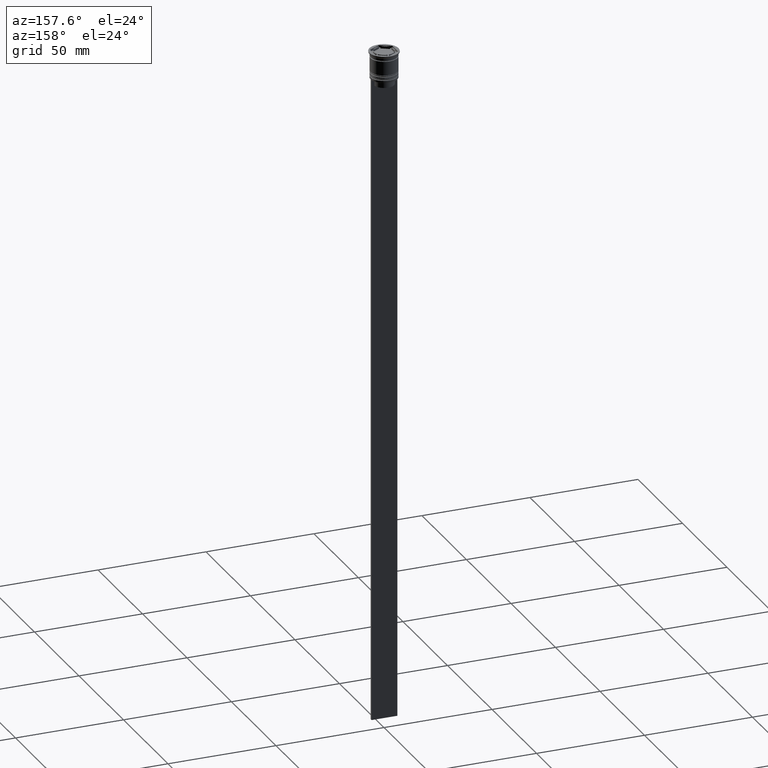
[diagram: clean part render]
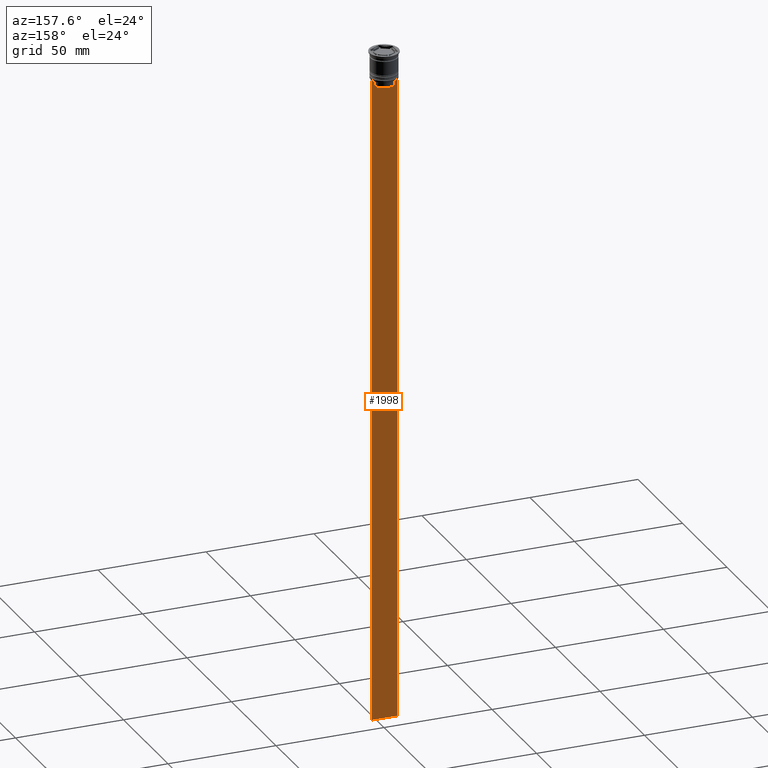
[diagram: same view with one face highlighted and labeled with its STEP entity id]
A machine part, auxiliary view. The second image highlights one B-rep face of the part: STEP entity #1998.
In plain terms, the highlighted planar face has unit normal (0, -1, -0).
Its self-contained STEP definition (entity closure, byte-faithful):
#48 = CARTESIAN_POINT ( 'NONE',  ( -4.623040125285526436, 0.4999999999999987232, -15.50000000000000000 ) ) ;
#61 = DIRECTION ( 'NONE',  ( 0.000000000000000000, 0.000000000000000000, -1.000000000000000000 ) ) ;
#92 = CARTESIAN_POINT ( 'NONE',  ( 6.000000000000016875, 0.4999999999999982792, -312.5000000000000000 ) ) ;
#96 = ORIENTED_EDGE ( 'NONE', *, *, #628, .T. ) ;
#98 = CARTESIAN_POINT ( 'NONE',  ( -5.999999999999983125, 0.4999999999999982792, -312.5000000000000000 ) ) ;
#133 = CARTESIAN_POINT ( 'NONE',  ( 6.000000000000016875, 0.4999999999999982792, -12.50000000000000000 ) ) ;
#179 = VERTEX_POINT ( 'NONE', #485 ) ;
#242 = DIRECTION ( 'NONE',  ( 0.000000000000000000, 0.000000000000000000, -1.000000000000000000 ) ) ;
#258 = DIRECTION ( 'NONE',  ( -1.000000000000000000, 0.000000000000000000, 0.000000000000000000 ) ) ;
#359 = LINE ( 'NONE', #727, #1670 ) ;
#361 = VERTEX_POINT ( 'NONE', #1869 ) ;
#368 = CARTESIAN_POINT ( 'NONE',  ( -5.125670687822231564, 0.4999999999999982792, -12.50000000000000000 ) ) ;
#386 = LINE ( 'NONE', #1611, #2234 ) ;
#400 = LINE ( 'NONE', #2237, #948 ) ;
#406 = DIRECTION ( 'NONE',  ( 0.000000000000000000, 0.000000000000000000, -1.000000000000000000 ) ) ;
#408 = EDGE_CURVE ( 'NONE', #1251, #1295, #400, .T. ) ;
#409 = DIRECTION ( 'NONE',  ( 1.000000000000000000, 0.000000000000000000, 0.000000000000000000 ) ) ;
#413 = LINE ( 'NONE', #573, #2276 ) ;
#420 = PLANE ( 'NONE',  #2279 ) ;
#435 = LINE ( 'NONE', #92, #2241 ) ;
#459 = ORIENTED_EDGE ( 'NONE', *, *, #2119, .T. ) ;
#480 = EDGE_CURVE ( 'NONE', #809, #2147, #2100, .T. ) ;
#485 = CARTESIAN_POINT ( 'NONE',  ( 6.000000000000016875, 0.4999999999999982792, -312.5000000000000000 ) ) ;
#503 = CARTESIAN_POINT ( 'NONE',  ( 6.000000000000016875, 0.4999999999999982792, -12.50000000000000000 ) ) ;
#526 = CARTESIAN_POINT ( 'NONE',  ( 4.790630799407576745, 0.4999999999999982792, -12.83338098686239093 ) ) ;
#561 = CARTESIAN_POINT ( 'NONE',  ( 5.125670687822231564, 0.4999999999999982792, -12.50000000000000000 ) ) ;
#573 = CARTESIAN_POINT ( 'NONE',  ( -4.623040125285526436, 0.4999999999999982792, 0.000000000000000000 ) ) ;
#594 = VERTEX_POINT ( 'NONE', #1218 ) ;
#615 = EDGE_LOOP ( 'NONE', ( #96, #2255, #775, #1124, #459, #1472, #617, #1274, #1117, #769 ) ) ;
#617 = ORIENTED_EDGE ( 'NONE', *, *, #480, .T. ) ;
#628 = EDGE_CURVE ( 'NONE', #361, #594, #386, .T. ) ;
#632 = DIRECTION ( 'NONE',  ( -0.000000000000000000, -0.000000000000000000, 1.000000000000000000 ) ) ;
#680 = EDGE_CURVE ( 'NONE', #2147, #179, #359, .T. ) ;
#698 = CARTESIAN_POINT ( 'NONE',  ( -4.790630915080666519, 0.4999999999999982792, -12.83338087185995313 ) ) ;
#727 = CARTESIAN_POINT ( 'NONE',  ( 6.000000000000016875, 0.4999999999999982792, -0.4584054212077061097 ) ) ;
#769 = ORIENTED_EDGE ( 'NONE', *, *, #2030, .F. ) ;
#775 = ORIENTED_EDGE ( 'NONE', *, *, #1278, .T. ) ;
#784 = DIRECTION ( 'NONE',  ( 0.000000000000000000, -1.000000000000000000, -0.000000000000000000 ) ) ;
#798 = FACE_OUTER_BOUND ( 'NONE', #615, .T. ) ;
#809 = VERTEX_POINT ( 'NONE', #979 ) ;
#872 = VECTOR ( 'NONE', #632, 1000.000000000000000 ) ;
#948 = VECTOR ( 'NONE', #409, 1000.000000000000000 ) ;
#979 = CARTESIAN_POINT ( 'NONE',  ( 5.125670687822231564, 0.4999999999999982792, -12.50000000000000000 ) ) ;
#1014 = CARTESIAN_POINT ( 'NONE',  ( 4.623040125285526436, 0.4999999999999987232, -15.50000000000000000 ) ) ;
#1015 = VERTEX_POINT ( 'NONE', #1786 ) ;
#1086 = DIRECTION ( 'NONE',  ( 0.000000000000000000, 0.000000000000000000, -1.000000000000000000 ) ) ;
#1117 = ORIENTED_EDGE ( 'NONE', *, *, #1658, .T. ) ;
#1124 = ORIENTED_EDGE ( 'NONE', *, *, #408, .T. ) ;
#1169 = LINE ( 'NONE', #1901, #872 ) ;
#1218 = CARTESIAN_POINT ( 'NONE',  ( -5.125670687822231564, 0.4999999999999982792, -12.50000000000000000 ) ) ;
#1243 = B_SPLINE_CURVE_WITH_KNOTS ( 'NONE', 3,
 ( #2004, #526, #1633, #561 ),
 .UNSPECIFIED., .F., .F.,
 ( 4, 4 ),
 ( 0.02203698174624552433, 0.02275222543365896036 ),
 .UNSPECIFIED. ) ;
#1251 = VERTEX_POINT ( 'NONE', #48 ) ;
#1273 = CARTESIAN_POINT ( 'NONE',  ( -4.623040125285526436, 0.4999999999999982792, -13.00000000000000178 ) ) ;
#1274 = ORIENTED_EDGE ( 'NONE', *, *, #680, .T. ) ;
#1278 = EDGE_CURVE ( 'NONE', #1281, #1251, #413, .T. ) ;
#1281 = VERTEX_POINT ( 'NONE', #2027 ) ;
#1295 = VERTEX_POINT ( 'NONE', #1014 ) ;
#1321 = CARTESIAN_POINT ( 'NONE',  ( 6.000000000000016875, 0.4999999999999982792, -0.4584054212077061097 ) ) ;
#1335 = CARTESIAN_POINT ( 'NONE',  ( -5.999999999999983125, 0.4999999999999982792, -0.4584054212077061097 ) ) ;
#1472 = ORIENTED_EDGE ( 'NONE', *, *, #1818, .T. ) ;
#1516 = LINE ( 'NONE', #1335, #2206 ) ;
#1611 = CARTESIAN_POINT ( 'NONE',  ( 6.000000000000016875, 0.4999999999999982792, -12.50000000000000000 ) ) ;
#1633 = CARTESIAN_POINT ( 'NONE',  ( 4.958169719475987058, 0.4999999999999982792, -12.66670967060858111 ) ) ;
#1658 = EDGE_CURVE ( 'NONE', #179, #2142, #435, .T. ) ;
#1670 = VECTOR ( 'NONE', #1086, 1000.000000000000000 ) ;
#1786 = CARTESIAN_POINT ( 'NONE',  ( 4.623040125285526436, 0.4999999999999982792, -13.00000000000000178 ) ) ;
#1787 = CARTESIAN_POINT ( 'NONE',  ( -4.958169823806762189, 0.4999999999999982792, -12.66670956677067750 ) ) ;
#1818 = EDGE_CURVE ( 'NONE', #1015, #809, #1243, .T. ) ;
#1825 = VECTOR ( 'NONE', #2285, 1000.000000000000000 ) ;
#1869 = CARTESIAN_POINT ( 'NONE',  ( -5.999999999999983125, 0.4999999999999985012, -12.50000000000000000 ) ) ;
#1901 = CARTESIAN_POINT ( 'NONE',  ( 4.623040125285526436, 0.4999999999999982792, 0.000000000000000000 ) ) ;
#1998 = ADVANCED_FACE ( 'NONE', ( #798 ), #420, .F. ) ;
#2004 = CARTESIAN_POINT ( 'NONE',  ( 4.623040125285526436, 0.4999999999999982792, -13.00000000000000178 ) ) ;
#2027 = CARTESIAN_POINT ( 'NONE',  ( -4.623040125285526436, 0.4999999999999982792, -13.00000000000000178 ) ) ;
#2030 = EDGE_CURVE ( 'NONE', #361, #2142, #1516, .T. ) ;
#2100 = LINE ( 'NONE', #503, #1825 ) ;
#2119 = EDGE_CURVE ( 'NONE', #1295, #1015, #1169, .T. ) ;
#2142 = VERTEX_POINT ( 'NONE', #98 ) ;
#2147 = VERTEX_POINT ( 'NONE', #133 ) ;
#2153 = B_SPLINE_CURVE_WITH_KNOTS ( 'NONE', 3,
 ( #368, #1787, #698, #1273 ),
 .UNSPECIFIED., .F., .F.,
 ( 4, 4 ),
 ( 0.008759809102772707357, 0.009468778395565351919 ),
 .UNSPECIFIED. ) ;
#2167 = DIRECTION ( 'NONE',  ( 1.000000000000000000, 0.000000000000000000, 0.000000000000000000 ) ) ;
#2206 = VECTOR ( 'NONE', #61, 1000.000000000000000 ) ;
#2234 = VECTOR ( 'NONE', #2167, 1000.000000000000000 ) ;
#2237 = CARTESIAN_POINT ( 'NONE',  ( 0.000000000000000000, 0.4999999999999987232, -15.50000000000000000 ) ) ;
#2241 = VECTOR ( 'NONE', #258, 1000.000000000000000 ) ;
#2255 = ORIENTED_EDGE ( 'NONE', *, *, #2304, .T. ) ;
#2276 = VECTOR ( 'NONE', #242, 1000.000000000000000 ) ;
#2279 = AXIS2_PLACEMENT_3D ( 'NONE', #1321, #784, #406 ) ;
#2285 = DIRECTION ( 'NONE',  ( 1.000000000000000000, 0.000000000000000000, 0.000000000000000000 ) ) ;
#2304 = EDGE_CURVE ( 'NONE', #594, #1281, #2153, .T. ) ;